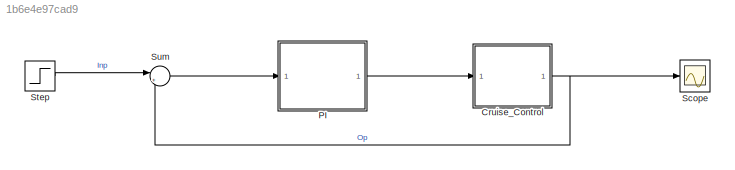
MODEL slx_1b6e4e97cad9
KIND model
CONFIG AbsTol = auto
CONFIG EnableMultiTasking = off
CONFIG FixedStep = auto
CONFIG MaxStep = auto
CONFIG MinStep = auto
CONFIG RelTol = 1e-3
CONFIG SampleTimeConstraint = Unconstrained
CONFIG Solver = ode45
CONFIG SolverName = ode45
CONFIG StartTime = 0.0
CONFIG StopTime = 10
BLOCK [ModelReference] Cruise_Control
  ModelNameDialog = Cruise_Control
  ModelReferenceVersion = 1.4
  Ports = [1, 1]
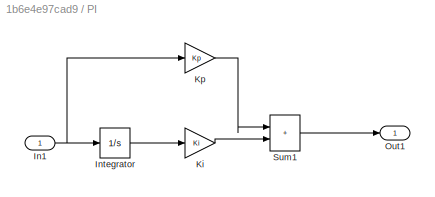
BLOCK [SubSystem] PI
  Ports = [1, 1]
  RequestExecContextInheritance = off
BLOCK [Inport] PI/In1
BLOCK [Integrator] PI/Integrator
  Ports = [1, 1]
BLOCK [Gain] PI/Ki
  Gain = Ki
BLOCK [Gain] PI/Kp
  Gain = Kp
BLOCK [Outport] PI/Out1
BLOCK [Sum] PI/Sum1
  IconShape = rectangular
  Inputs = |++
  Ports = [2, 1]
BLOCK [Scope] Scope
  Floating = off
  NumInputPorts = 1
  Ports = [1]
  ScopeSpecificationString = Simulink.scopes.TimeScopeBlockCfg('CurrentConfiguration', extmgr.ConfigurationSet(extmgr.Configuration('Core','General UI',true),extmgr.Configuration('Core','Source UI',true),extmgr.Configuration('Sources','WiredSimulink',true),extmgr.Configuration('Visuals','Time Domain',true,'SerializedDisplays',{struct('MinYLimReal','-1.24958','MaxYLimReal','11.24623','YLabelReal','','MinYLimMag','0.00000','Max...<+1352ch>
BLOCK [Step] Step
  After = u
  SampleTime = 0
  Time = 0
BLOCK [Sum] Sum
  Inputs = |+-
  Ports = [2, 1]
NET Cruise_Control:1 -> Scope:1, Sum:2
NET PI/In1:1 -> PI/Integrator:1, PI/Kp:1
LINE PI/Integrator:1 -> PI/Ki:1
LINE PI/Ki:1 -> PI/Sum1:2
LINE PI/Kp:1 -> PI/Sum1:1
LINE PI/Sum1:1 -> PI/Out1:1
LINE PI:1 -> Cruise_Control:1
LINE Step:1 -> Sum:1
LINE Sum:1 -> PI:1
note: NET lines group one-source signal fan-out (src -> all destinations, sorted); 1:1 wires keep LINE
